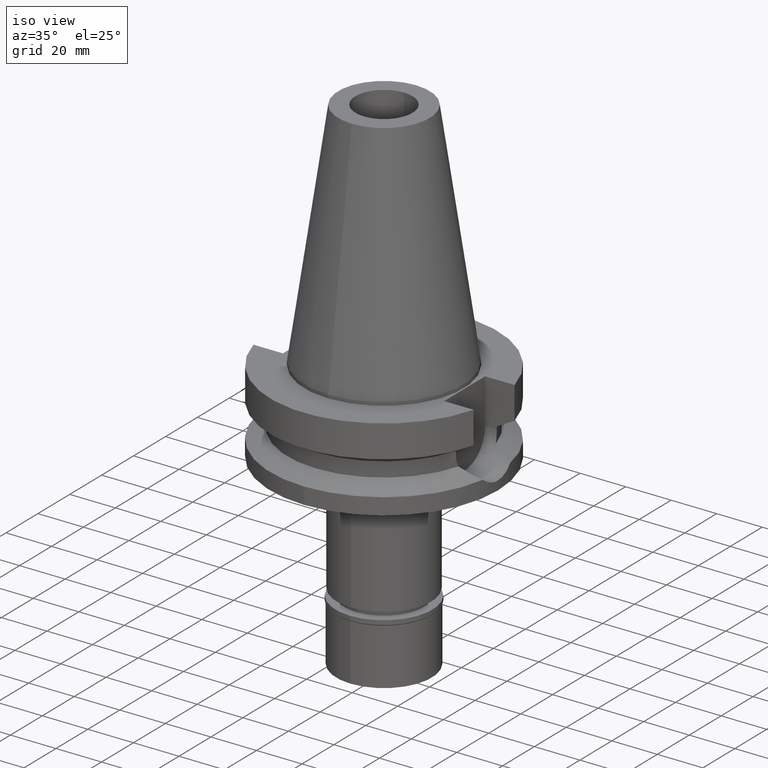
[diagram: clean part render]
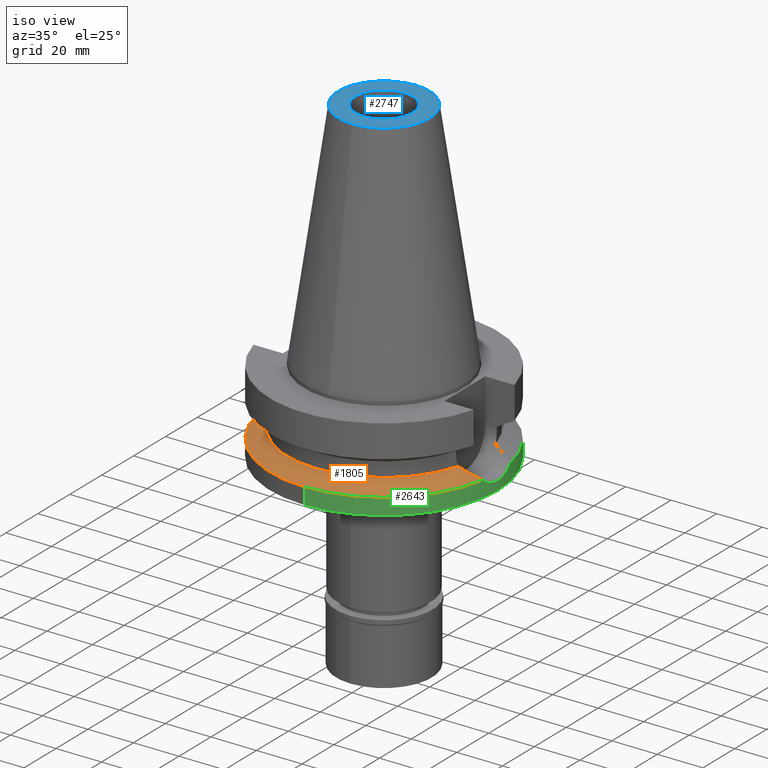
[diagram: same view with three faces highlighted in distinct colors, each labeled with its STEP entity id]
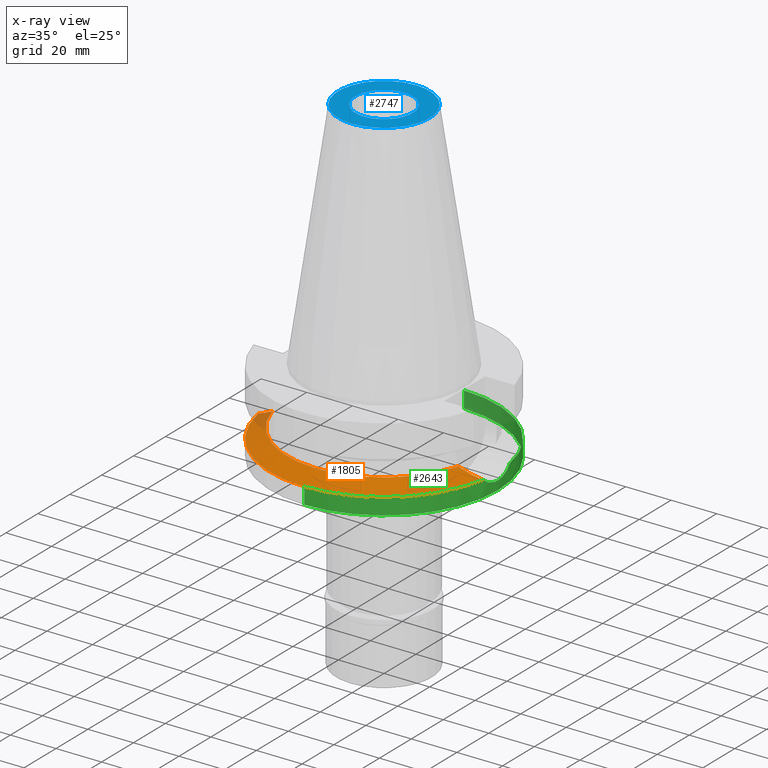
[diagram: x-ray of the same camera — body ghosted, the three highlighted faces saturated]
A machine part, iso view with three faces highlighted in distinct colors.
The next image is the same camera in x-ray (body ghosted, the three faces saturated) — at least one of them is partly hidden behind the body in this view.
Their STEP definitions:

[orange] entity #1805 — the highlighted conical surface has half-angle 60 deg.
#13 = CIRCLE ( 'NONE', #272, 42.50000000000000000 ) ;
#21 = CARTESIAN_POINT ( 'NONE',  ( 48.20287311736753821, -9.164136393110000611, -30.19463197301543644 ) ) ;
#52 = CARTESIAN_POINT ( 'NONE',  ( 0.0000000000000000000, 0.0000000000000000000, -30.73730776426999967 ) ) ;
#80 = CARTESIAN_POINT ( 'NONE',  ( 0.0000000000000000000, 0.0000000000000000000, -26.40718074535000426 ) ) ;
#114 = AXIS2_PLACEMENT_3D ( 'NONE', #412, #1160, #1127 ) ;
#132 = EDGE_CURVE ( 'NONE', #2988, #2454, #835, .T. ) ;
#169 = CARTESIAN_POINT ( 'NONE',  ( -49.26250064874000145, -8.556052234130000045, -30.73730776426999967 ) ) ;
#182 = FACE_OUTER_BOUND ( 'NONE', #3015, .T. ) ;
#272 = AXIS2_PLACEMENT_3D ( 'NONE', #80, #2479, #2045 ) ;
#280 = DIRECTION ( 'NONE',  ( 0.0000000000000000000, -1.000000000000000000, 0.0000000000000000000 ) ) ;
#299 = CARTESIAN_POINT ( 'NONE',  ( -47.10088796531334054, -9.658047540051279967, -29.62917516347609492 ) ) ;
#312 = CARTESIAN_POINT ( 'NONE',  ( -49.26250064874000145, -8.556052234130000045, -30.73730776426999967 ) ) ;
#345 = CARTESIAN_POINT ( 'NONE',  ( -45.33608351961467520, -10.38200475690822699, -28.72208816269516873 ) ) ;
#412 = CARTESIAN_POINT ( 'NONE',  ( 0.0000000000000000000, 0.0000000000000000000, -28.57224425480999841 ) ) ;
#444 = VERTEX_POINT ( 'NONE', #3131 ) ;
#487 = EDGE_CURVE ( 'NONE', #2454, #2889, #2457, .T. ) ;
#499 = ORIENTED_EDGE ( 'NONE', *, *, #561, .F. ) ;
#526 = AXIS2_PLACEMENT_3D ( 'NONE', #52, #2902, #280 ) ;
#539 = CARTESIAN_POINT ( 'NONE',  ( -48.08503519590412623, -9.198587229166999890, -30.13418988794248676 ) ) ;
#553 = CARTESIAN_POINT ( 'NONE',  ( -40.85052569294000335, -11.72538061688000077, -26.40718074535000426 ) ) ;
#561 = EDGE_CURVE ( 'NONE', #1307, #2988, #2235, .T. ) ;
#672 = AXIS2_PLACEMENT_3D ( 'NONE', #2115, #2765, #1144 ) ;
#829 = CARTESIAN_POINT ( 'NONE',  ( -42.53212684745952288, -11.33486500642443140, -27.27816928297688648 ) ) ;
#835 = CIRCLE ( 'NONE', #672, 50.00000000000000000 ) ;
#1003 = EDGE_CURVE ( 'NONE', #444, #1307, #13, .T. ) ;
#1045 = EDGE_CURVE ( 'NONE', #2889, #444, #1140, .T. ) ;
#1127 = DIRECTION ( 'NONE',  ( 0.0000000000000000000, -1.000000000000000000, 0.0000000000000000000 ) ) ;
#1140 = B_SPLINE_CURVE_WITH_KNOTS ( 'NONE', 3,
 ( #312, #2514, #539, #299, #1799, #2695, #2727, #1730, #1499, #2293, #1750, #2759, #345, #2995, #829, #553 ),
 .UNSPECIFIED., .F., .F.,
 ( 4, 2, 2, 1, 1, 1, 1, 2, 2, 4 ),
 ( 0.0000000000000000000, 0.2500000000000030531, 0.3750000000000043299, 0.4375000000000052180, 0.4687500000000046074, 0.4843750000000041633, 0.4921875000000041078, 0.4960937500000038858, 0.5000000000000036637, 1.000000000000000000 ),
 .UNSPECIFIED. ) ;
#1144 = DIRECTION ( 'NONE',  ( 0.9852500129747439050, -0.1711210446826074982, 0.0000000000000000000 ) ) ;
#1160 = DIRECTION ( 'NONE',  ( 0.0000000000000000000, 0.0000000000000000000, -1.000000000000000000 ) ) ;
#1176 = ORIENTED_EDGE ( 'NONE', *, *, #132, .F. ) ;
#1232 = CARTESIAN_POINT ( 'NONE',  ( 44.24207864333470752, -10.80588218555863200, -28.15958307959968465 ) ) ;
#1307 = VERTEX_POINT ( 'NONE', #1414 ) ;
#1414 = CARTESIAN_POINT ( 'NONE',  ( 40.85052569294000335, -11.72538061688000077, -26.40718074535000426 ) ) ;
#1469 = CARTESIAN_POINT ( 'NONE',  ( 40.85052569294000335, -11.72538061688000077, -26.40718074535000426 ) ) ;
#1499 = CARTESIAN_POINT ( 'NONE',  ( -45.48846743933556525, -10.32444962760017582, -28.80047537013114223 ) ) ;
#1730 = CARTESIAN_POINT ( 'NONE',  ( -45.64979513669227629, -10.26266476828649665, -28.88345436997873250 ) ) ;
#1750 = CARTESIAN_POINT ( 'NONE',  ( -45.37247682446884056, -10.36832494264050908, -28.74080976207427796 ) ) ;
#1751 = CARTESIAN_POINT ( 'NONE',  ( 49.26250064874000145, -8.556052234130000045, -30.73730776426999967 ) ) ;
#1799 = CARTESIAN_POINT ( 'NONE',  ( -46.76161131723154796, -9.808379919078348053, -29.45495226781021714 ) ) ;
#1805 = ADVANCED_FACE ( 'NONE', ( #182 ), #2750, .T. ) ;
#2045 = DIRECTION ( 'NONE',  ( 0.0000000000000000000, -1.000000000000000000, 0.0000000000000000000 ) ) ;
#2115 = CARTESIAN_POINT ( 'NONE',  ( 0.0000000000000000000, 0.0000000000000000000, -30.73730776426999967 ) ) ;
#2200 = CARTESIAN_POINT ( 'NONE',  ( 46.98686321001197541, -9.746124432590637099, -29.57106901185611392 ) ) ;
#2235 = B_SPLINE_CURVE_WITH_KNOTS ( 'NONE', 3,
 ( #1469, #2971, #1232, #2200, #21, #1751 ),
 .UNSPECIFIED., .F., .F.,
 ( 4, 2, 4 ),
 ( 0.0000000000000000000, 0.5000000000000000000, 1.000000000000000000 ),
 .UNSPECIFIED. ) ;
#2258 = CARTESIAN_POINT ( 'NONE',  ( 49.26250064874000145, -8.556052234130000045, -30.73730776426999967 ) ) ;
#2293 = CARTESIAN_POINT ( 'NONE',  ( -45.40734308480644899, -10.35518596978226036, -28.75874548313739965 ) ) ;
#2317 = ORIENTED_EDGE ( 'NONE', *, *, #1045, .F. ) ;
#2434 = ORIENTED_EDGE ( 'NONE', *, *, #487, .F. ) ;
#2454 = VERTEX_POINT ( 'NONE', #3027 ) ;
#2457 = CIRCLE ( 'NONE', #526, 50.00000000000000000 ) ;
#2479 = DIRECTION ( 'NONE',  ( 0.0000000000000000000, 0.0000000000000000000, 1.000000000000000000 ) ) ;
#2514 = CARTESIAN_POINT ( 'NONE',  ( -48.69622306475849172, -8.881019657314055848, -30.44729535249450691 ) ) ;
#2695 = CARTESIAN_POINT ( 'NONE',  ( -46.23585498828153106, -10.02887348046206561, -29.18478119893633149 ) ) ;
#2727 = CARTESIAN_POINT ( 'NONE',  ( -45.96876648459969772, -10.13786852196958321, -29.04748737176390705 ) ) ;
#2750 = CONICAL_SURFACE ( 'NONE', #114, 46.25000000000000000, 1.047197551196400456 ) ;
#2759 = CARTESIAN_POINT ( 'NONE',  ( -45.34921072206039838, -10.37707672578667406, -28.72884117707450002 ) ) ;
#2765 = DIRECTION ( 'NONE',  ( 0.0000000000000000000, 0.0000000000000000000, -1.000000000000000000 ) ) ;
#2889 = VERTEX_POINT ( 'NONE', #169 ) ;
#2902 = DIRECTION ( 'NONE',  ( 0.0000000000000000000, 0.0000000000000000000, -1.000000000000000000 ) ) ;
#2928 = ORIENTED_EDGE ( 'NONE', *, *, #1003, .F. ) ;
#2971 = CARTESIAN_POINT ( 'NONE',  ( 42.65325184508833445, -11.30673633735477956, -27.34090620739781130 ) ) ;
#2988 = VERTEX_POINT ( 'NONE', #2258 ) ;
#2995 = CARTESIAN_POINT ( 'NONE',  ( -44.02392219193846756, -10.87380916861857649, -28.04706658237352102 ) ) ;
#3015 = EDGE_LOOP ( 'NONE', ( #2434, #1176, #499, #2928, #2317 ) ) ;
#3027 = CARTESIAN_POINT ( 'NONE',  ( 0.0000000000000000000, -50.00000000000000000, -30.73730776426999967 ) ) ;
#3131 = CARTESIAN_POINT ( 'NONE',  ( -40.85052569294000335, -11.72538061688000077, -26.40718074535000426 ) ) ;

[blue] entity #2747 — the highlighted planar face has unit normal (0, 0, -1).
#193 = DIRECTION ( 'NONE',  ( 0.0000000000000000000, 1.000000000000000000, 0.0000000000000000000 ) ) ;
#207 = CARTESIAN_POINT ( 'NONE',  ( 0.0000000000000000000, -20.07942971896000017, 101.7999999999999972 ) ) ;
#256 = DIRECTION ( 'NONE',  ( 0.0000000000000000000, -1.000000000000000000, 0.0000000000000000000 ) ) ;
#283 = AXIS2_PLACEMENT_3D ( 'NONE', #730, #2904, #1914 ) ;
#460 = DIRECTION ( 'NONE',  ( 0.0000000000000000000, 0.0000000000000000000, -1.000000000000000000 ) ) ;
#471 = CARTESIAN_POINT ( 'NONE',  ( 0.0000000000000000000, 2.471337240678999545E-14, 101.7999999999999972 ) ) ;
#486 = DIRECTION ( 'NONE',  ( 0.0000000000000000000, 0.0000000000000000000, 1.000000000000000000 ) ) ;
#507 = CARTESIAN_POINT ( 'NONE',  ( 0.0000000000000000000, -12.50000000000000000, 101.7999999999999972 ) ) ;
#514 = DIRECTION ( 'NONE',  ( 0.0000000000000000000, -1.000000000000000000, 0.0000000000000000000 ) ) ;
#545 = VERTEX_POINT ( 'NONE', #2715 ) ;
#580 = CIRCLE ( 'NONE', #738, 20.07942971896000017 ) ;
#590 = VERTEX_POINT ( 'NONE', #507 ) ;
#721 = FACE_OUTER_BOUND ( 'NONE', #2926, .T. ) ;
#730 = CARTESIAN_POINT ( 'NONE',  ( 0.0000000000000000000, 2.600415013308999844E-14, 101.7999999999999972 ) ) ;
#738 = AXIS2_PLACEMENT_3D ( 'NONE', #1383, #3107, #193 ) ;
#764 = ORIENTED_EDGE ( 'NONE', *, *, #3091, .F. ) ;
#777 = AXIS2_PLACEMENT_3D ( 'NONE', #1910, #460, #1199 ) ;
#935 = EDGE_CURVE ( 'NONE', #2600, #545, #2260, .T. ) ;
#1050 = ORIENTED_EDGE ( 'NONE', *, *, #2498, .F. ) ;
#1130 = EDGE_LOOP ( 'NONE', ( #764, #2238 ) ) ;
#1199 = DIRECTION ( 'NONE',  ( 0.0000000000000000000, -1.000000000000000000, 0.0000000000000000000 ) ) ;
#1383 = CARTESIAN_POINT ( 'NONE',  ( 0.0000000000000000000, 1.847992019912999597E-14, 101.7999999999999972 ) ) ;
#1495 = CARTESIAN_POINT ( 'NONE',  ( 0.0000000000000000000, 12.50000000000000000, 101.7999999999999972 ) ) ;
#1649 = CIRCLE ( 'NONE', #283, 12.50000000000000000 ) ;
#1674 = VERTEX_POINT ( 'NONE', #1495 ) ;
#1691 = FACE_BOUND ( 'NONE', #1130, .T. ) ;
#1814 = CIRCLE ( 'NONE', #2172, 12.50000000000000000 ) ;
#1910 = CARTESIAN_POINT ( 'NONE',  ( 0.0000000000000000000, 1.847992019912999597E-14, 101.7999999999999972 ) ) ;
#1914 = DIRECTION ( 'NONE',  ( 0.0000000000000000000, 1.000000000000000000, 0.0000000000000000000 ) ) ;
#1954 = CARTESIAN_POINT ( 'NONE',  ( 0.0000000000000000000, 2.600415013308999844E-14, 101.7999999999999972 ) ) ;
#2172 = AXIS2_PLACEMENT_3D ( 'NONE', #1954, #486, #256 ) ;
#2238 = ORIENTED_EDGE ( 'NONE', *, *, #2754, .F. ) ;
#2260 = CIRCLE ( 'NONE', #777, 20.07942971896000017 ) ;
#2274 = AXIS2_PLACEMENT_3D ( 'NONE', #471, #2664, #514 ) ;
#2498 = EDGE_CURVE ( 'NONE', #545, #2600, #580, .T. ) ;
#2553 = ORIENTED_EDGE ( 'NONE', *, *, #935, .F. ) ;
#2600 = VERTEX_POINT ( 'NONE', #207 ) ;
#2646 = PLANE ( 'NONE',  #2274 ) ;
#2664 = DIRECTION ( 'NONE',  ( 0.0000000000000000000, 0.0000000000000000000, -1.000000000000000000 ) ) ;
#2715 = CARTESIAN_POINT ( 'NONE',  ( 0.0000000000000000000, 20.07942971896000017, 101.7999999999999972 ) ) ;
#2747 = ADVANCED_FACE ( 'NONE', ( #721, #1691 ), #2646, .F. ) ;
#2754 = EDGE_CURVE ( 'NONE', #590, #1674, #1814, .T. ) ;
#2904 = DIRECTION ( 'NONE',  ( 0.0000000000000000000, 0.0000000000000000000, 1.000000000000000000 ) ) ;
#2926 = EDGE_LOOP ( 'NONE', ( #1050, #2553 ) ) ;
#3091 = EDGE_CURVE ( 'NONE', #1674, #590, #1649, .T. ) ;
#3107 = DIRECTION ( 'NONE',  ( 0.0000000000000000000, 0.0000000000000000000, -1.000000000000000000 ) ) ;

[green] entity #2643 — the highlighted cylindrical surface (partial cylindrical patch) has radius 50 mm, axis along (0, 0, -1).
#27 = CARTESIAN_POINT ( 'NONE',  ( 0.0000000000000000000, 2.600415013308999844E-14, 112.3399999999999892 ) ) ;
#60 = DIRECTION ( 'NONE',  ( 0.0000000000000000000, 1.000000000000000000, 0.0000000000000000000 ) ) ;
#101 = VERTEX_POINT ( 'NONE', #1597 ) ;
#106 = CARTESIAN_POINT ( 'NONE',  ( 0.0000000000000000000, -50.00000000000000000, -30.73730776426999967 ) ) ;
#132 = EDGE_CURVE ( 'NONE', #2988, #2454, #835, .T. ) ;
#153 = DIRECTION ( 'NONE',  ( 0.0000000000000000000, 0.0000000000000000000, -1.000000000000000000 ) ) ;
#197 = CARTESIAN_POINT ( 'NONE',  ( 49.79079948641093978, -4.569077029242012422, -33.16024877062329068 ) ) ;
#271 = FACE_OUTER_BOUND ( 'NONE', #2404, .T. ) ;
#293 = AXIS2_PLACEMENT_3D ( 'NONE', #27, #2474, #1194 ) ;
#306 = B_SPLINE_CURVE_WITH_KNOTS ( 'NONE', 3,
 ( #2446, #1500, #2466, #1767, #2728, #992, #329, #2480, #1961, #743, #554, #1266, #313, #1279, #2495, #1299, #2265, #1717, #1250 ),
 .UNSPECIFIED., .F., .F.,
 ( 4, 2, 2, 1, 1, 1, 1, 1, 2, 2, 2, 4 ),
 ( 0.0000000000000000000, 0.2500000000000302536, 0.3750000000000454081, 0.4375000000000530131, 0.4687500000000570100, 0.4843750000000591749, 0.4921875000000602296, 0.4960937500000611178, 0.4980468750000612288, 0.5000000000000612843, 0.7500000000000306422, 1.000000000000000000 ),
 .UNSPECIFIED. ) ;
#313 = CARTESIAN_POINT ( 'NONE',  ( 49.79239523035389681, 4.551608024959792331, -33.16687999445529300 ) ) ;
#329 = CARTESIAN_POINT ( 'NONE',  ( 49.84837320789217330, 3.895659733930237678, -33.39815592388383436 ) ) ;
#449 = CARTESIAN_POINT ( 'NONE',  ( 49.78850586346982254, -4.594055356218971653, -33.15072133028026968 ) ) ;
#458 = CARTESIAN_POINT ( 'NONE',  ( 49.26250064874000145, -8.556052234130000045, -30.73730776426999967 ) ) ;
#543 = B_SPLINE_CURVE_WITH_KNOTS ( 'NONE', 3,
 ( #458, #2128, #900, #2625, #3064, #1637, #677, #2823, #2375, #2140, #659, #449, #3082, #1400, #197, #1429, #2389, #1139, #3128, #1415 ),
 .UNSPECIFIED., .F., .F.,
 ( 4, 2, 2, 2, 1, 1, 1, 1, 2, 2, 2, 4 ),
 ( 0.0000000000000000000, 0.2499999999999902300, 0.3749999999999853451, 0.4374999999999834022, 0.4687499999999830691, 0.4843749999999829026, 0.4921874999999825695, 0.4960937499999827915, 0.4980468749999826805, 0.4999999999999826805, 0.7499999999999913403, 1.000000000000000000 ),
 .UNSPECIFIED. ) ;
#554 = CARTESIAN_POINT ( 'NONE',  ( 49.79509875745613101, 4.521875388855765010, -33.17810981394494263 ) ) ;
#573 = EDGE_CURVE ( 'NONE', #101, #1502, #306, .T. ) ;
#659 = CARTESIAN_POINT ( 'NONE',  ( 49.78563763146035370, -4.625094769469991540, -33.13881278612479520 ) ) ;
#672 = AXIS2_PLACEMENT_3D ( 'NONE', #2115, #2765, #1144 ) ;
#677 = CARTESIAN_POINT ( 'NONE',  ( 49.73404098637741555, -5.148335372112765818, -32.92469446721273840 ) ) ;
#743 = CARTESIAN_POINT ( 'NONE',  ( 49.79885843275886259, 4.480234919363338619, -33.19371722163469940 ) ) ;
#783 = AXIS2_PLACEMENT_3D ( 'NONE', #909, #2584, #1274 ) ;
#835 = CIRCLE ( 'NONE', #672, 50.00000000000000000 ) ;
#878 = EDGE_CURVE ( 'NONE', #1488, #2435, #2854, .T. ) ;
#891 = AXIS2_PLACEMENT_3D ( 'NONE', #2829, #153, #60 ) ;
#900 = CARTESIAN_POINT ( 'NONE',  ( 49.49360537178142039, -7.117033888054458579, -31.87769203084573633 ) ) ;
#909 = CARTESIAN_POINT ( 'NONE',  ( 0.0000000000000000000, 2.600415013308999844E-14, -38.00000000000000000 ) ) ;
#992 = CARTESIAN_POINT ( 'NONE',  ( 49.86956835087501361, 3.608176226008057874, -33.48463187136963626 ) ) ;
#1139 = CARTESIAN_POINT ( 'NONE',  ( 49.98261190536403831, -1.500633725836150623, -33.93573757117557932 ) ) ;
#1144 = DIRECTION ( 'NONE',  ( 0.9852500129747439050, -0.1711210446826074982, 0.0000000000000000000 ) ) ;
#1148 = CIRCLE ( 'NONE', #891, 50.00000000000000000 ) ;
#1194 = DIRECTION ( 'NONE',  ( 0.0000000000000000000, -1.000000000000000000, 0.0000000000000000000 ) ) ;
#1208 = ORIENTED_EDGE ( 'NONE', *, *, #2925, .T. ) ;
#1216 = DIRECTION ( 'NONE',  ( 0.0000000000000000000, 2.152361642122000014E-14, -1.000000000000000000 ) ) ;
#1250 = CARTESIAN_POINT ( 'NONE',  ( 49.26250064874000145, 8.556052234130000045, -30.73730776426999967 ) ) ;
#1266 = CARTESIAN_POINT ( 'NONE',  ( 49.79347791494135578, 4.539715724459109758, -33.17137768956273192 ) ) ;
#1274 = DIRECTION ( 'NONE',  ( 0.0000000000000000000, -1.000000000000000000, 0.0000000000000000000 ) ) ;
#1279 = CARTESIAN_POINT ( 'NONE',  ( 49.79171236025752734, 4.559090087494285903, -33.16404260906112711 ) ) ;
#1282 = ORIENTED_EDGE ( 'NONE', *, *, #2031, .F. ) ;
#1286 = VERTEX_POINT ( 'NONE', #2167 ) ;
#1299 = CARTESIAN_POINT ( 'NONE',  ( 49.66986618803244369, 5.762088536517180337, -32.66233170626229310 ) ) ;
#1400 = CARTESIAN_POINT ( 'NONE',  ( 49.79053563887350720, -4.571955316148011761, -33.15915263189054230 ) ) ;
#1415 = CARTESIAN_POINT ( 'NONE',  ( 50.00000000000000000, 1.759450056335000012E-14, -34.00000000000000000 ) ) ;
#1429 = CARTESIAN_POINT ( 'NONE',  ( 49.86089524291222119, -3.802281370325933718, -33.45152773135138347 ) ) ;
#1488 = VERTEX_POINT ( 'NONE', #2491 ) ;
#1500 = CARTESIAN_POINT ( 'NONE',  ( 50.00000000000000711, 0.7410986935646246554, -34.00000000000001421 ) ) ;
#1502 = VERTEX_POINT ( 'NONE', #2724 ) ;
#1563 = VECTOR ( 'NONE', #2771, 1000.000000000000000 ) ;
#1597 = CARTESIAN_POINT ( 'NONE',  ( 50.00000000000000000, 1.759450056335000012E-14, -34.00000000000000000 ) ) ;
#1637 = CARTESIAN_POINT ( 'NONE',  ( 49.71771672577816759, -5.301668117897388122, -32.85661610155231926 ) ) ;
#1717 = CARTESIAN_POINT ( 'NONE',  ( 49.38718636586273192, 7.838159209090944657, -31.37798086789630148 ) ) ;
#1767 = CARTESIAN_POINT ( 'NONE',  ( 49.93043645380000584, 2.648747845234779685, -33.73005492412146111 ) ) ;
#1803 = ORIENTED_EDGE ( 'NONE', *, *, #2831, .T. ) ;
#1816 = CARTESIAN_POINT ( 'NONE',  ( 0.0000000000000000000, 50.00000000000000000, -38.00000000000000000 ) ) ;
#1924 = CARTESIAN_POINT ( 'NONE',  ( 0.0000000000000000000, 50.00000000000000000, -30.73730776426999967 ) ) ;
#1961 = CARTESIAN_POINT ( 'NONE',  ( 49.80628862110420130, 4.396903292137572805, -33.22452887383583686 ) ) ;
#2031 = EDGE_CURVE ( 'NONE', #2988, #101, #543, .T. ) ;
#2038 = ORIENTED_EDGE ( 'NONE', *, *, #878, .F. ) ;
#2060 = LINE ( 'NONE', #106, #1563 ) ;
#2115 = CARTESIAN_POINT ( 'NONE',  ( 0.0000000000000000000, 0.0000000000000000000, -30.73730776426999967 ) ) ;
#2117 = CIRCLE ( 'NONE', #783, 50.00000000000000000 ) ;
#2128 = CARTESIAN_POINT ( 'NONE',  ( 49.38719034101048777, -7.838136321681171914, -31.37800129342955557 ) ) ;
#2140 = CARTESIAN_POINT ( 'NONE',  ( 49.77980747410856566, -4.687522623389893894, -33.11462325496798087 ) ) ;
#2161 = VECTOR ( 'NONE', #1216, 1000.000000000000000 ) ;
#2167 = CARTESIAN_POINT ( 'NONE',  ( 0.0000000000000000000, -50.00000000000000000, -38.00000000000000000 ) ) ;
#2258 = CARTESIAN_POINT ( 'NONE',  ( 49.26250064874000145, -8.556052234130000045, -30.73730776426999967 ) ) ;
#2265 = CARTESIAN_POINT ( 'NONE',  ( 49.49359661714576930, 7.117097517531417949, -31.87764506047917479 ) ) ;
#2375 = CARTESIAN_POINT ( 'NONE',  ( 49.76777238607341758, -4.813761784933280552, -33.06473290396166931 ) ) ;
#2376 = EDGE_CURVE ( 'NONE', #2454, #1286, #2060, .T. ) ;
#2384 = ORIENTED_EDGE ( 'NONE', *, *, #132, .T. ) ;
#2389 = CARTESIAN_POINT ( 'NONE',  ( 49.91305952682013469, -3.031241888698178677, -33.66153705306781774 ) ) ;
#2404 = EDGE_LOOP ( 'NONE', ( #2384, #2501, #1208, #2038, #1803, #2482, #1282 ) ) ;
#2435 = VERTEX_POINT ( 'NONE', #1816 ) ;
#2446 = CARTESIAN_POINT ( 'NONE',  ( 50.00000000000000000, 1.759450056335000012E-14, -34.00000000000000000 ) ) ;
#2454 = VERTEX_POINT ( 'NONE', #3027 ) ;
#2466 = CARTESIAN_POINT ( 'NONE',  ( 49.98260911345000324, 1.500697552806496526, -33.93573404311199937 ) ) ;
#2474 = DIRECTION ( 'NONE',  ( 0.0000000000000000000, 0.0000000000000000000, -1.000000000000000000 ) ) ;
#2480 = CARTESIAN_POINT ( 'NONE',  ( 49.82079234875429563, 4.230048365462381277, -33.28454251577694123 ) ) ;
#2482 = ORIENTED_EDGE ( 'NONE', *, *, #573, .F. ) ;
#2491 = CARTESIAN_POINT ( 'NONE',  ( 0.0000000000000000000, 50.00000000000000000, -30.73730776426999967 ) ) ;
#2495 = CARTESIAN_POINT ( 'NONE',  ( 49.73972550763608780, 5.127766568325689889, -32.94800241990579082 ) ) ;
#2501 = ORIENTED_EDGE ( 'NONE', *, *, #2376, .T. ) ;
#2584 = DIRECTION ( 'NONE',  ( 0.0000000000000000000, 0.0000000000000000000, 1.000000000000000000 ) ) ;
#2625 = CARTESIAN_POINT ( 'NONE',  ( 49.62581592568847100, -6.100685967820676403, -32.46624463504269187 ) ) ;
#2643 = ADVANCED_FACE ( 'NONE', ( #271 ), #2707, .T. ) ;
#2707 = CYLINDRICAL_SURFACE ( 'NONE', #293, 50.00000000000000000 ) ;
#2724 = CARTESIAN_POINT ( 'NONE',  ( 49.26250064874000145, 8.556052234130000045, -30.73730776426999967 ) ) ;
#2728 = CARTESIAN_POINT ( 'NONE',  ( 49.90869784561250810, 3.032821730104816815, -33.64331055701217821 ) ) ;
#2765 = DIRECTION ( 'NONE',  ( 0.0000000000000000000, 0.0000000000000000000, -1.000000000000000000 ) ) ;
#2771 = DIRECTION ( 'NONE',  ( 0.0000000000000000000, -2.054527022025999694E-14, -1.000000000000000000 ) ) ;
#2823 = CARTESIAN_POINT ( 'NONE',  ( 49.75681412776069834, -4.924294299287993226, -33.01930483975322517 ) ) ;
#2829 = CARTESIAN_POINT ( 'NONE',  ( 0.0000000000000000000, 0.0000000000000000000, -30.73730776426999967 ) ) ;
#2831 = EDGE_CURVE ( 'NONE', #1488, #1502, #1148, .T. ) ;
#2854 = LINE ( 'NONE', #1924, #2161 ) ;
#2925 = EDGE_CURVE ( 'NONE', #1286, #2435, #2117, .T. ) ;
#2988 = VERTEX_POINT ( 'NONE', #2258 ) ;
#3027 = CARTESIAN_POINT ( 'NONE',  ( 0.0000000000000000000, -50.00000000000000000, -30.73730776426999967 ) ) ;
#3064 = CARTESIAN_POINT ( 'NONE',  ( 49.66531744494930223, -5.772426570185700712, -32.63572039611051423 ) ) ;
#3082 = CARTESIAN_POINT ( 'NONE',  ( 49.78972506718821478, -4.580790312866077407, -33.15578537449549401 ) ) ;
#3128 = CARTESIAN_POINT ( 'NONE',  ( 50.00000000000000000, -0.7410781189619164433, -34.00000000000000711 ) ) ;